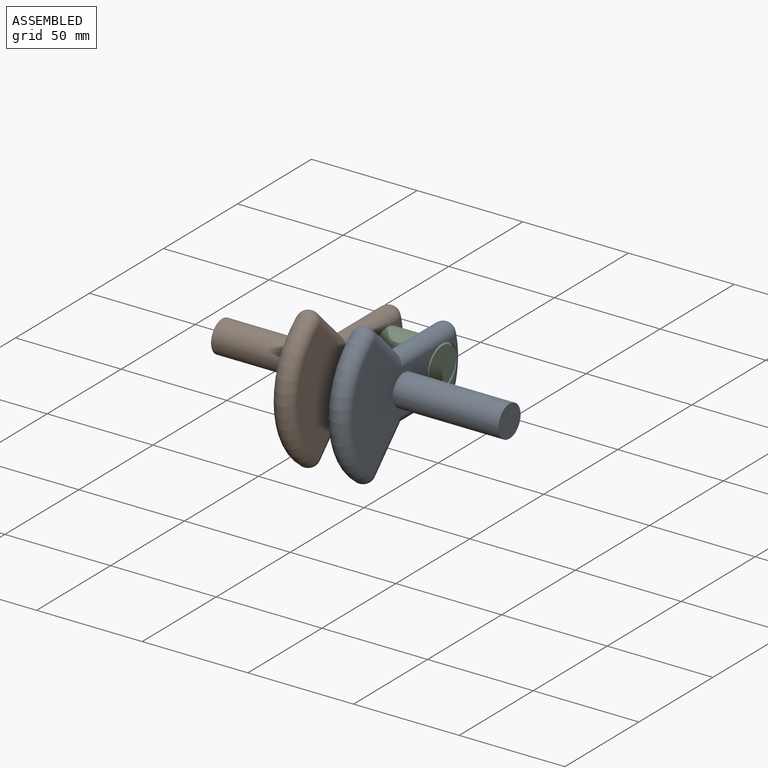
[diagram: assembled view]
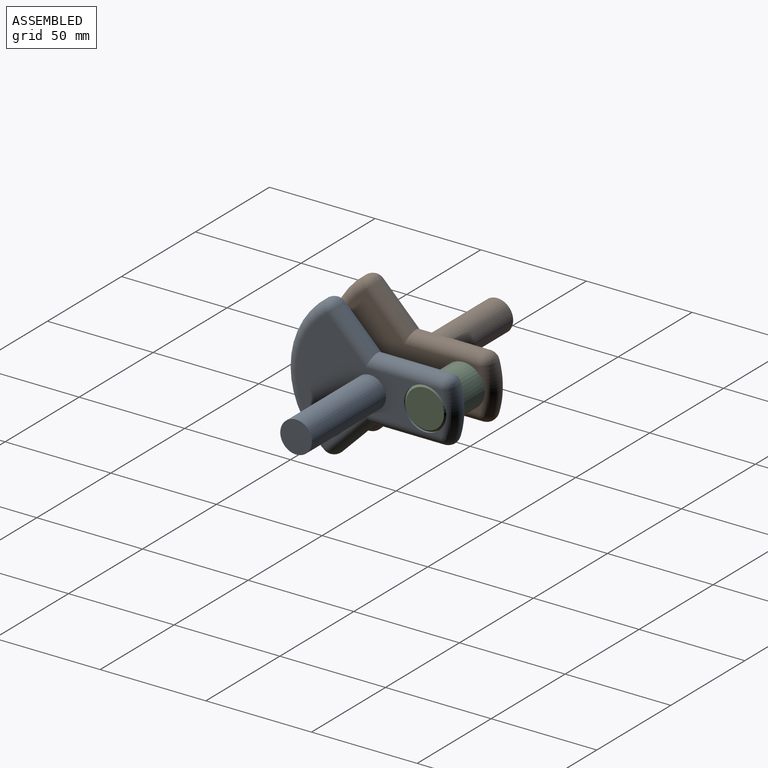
[diagram: assembled view, second angle]
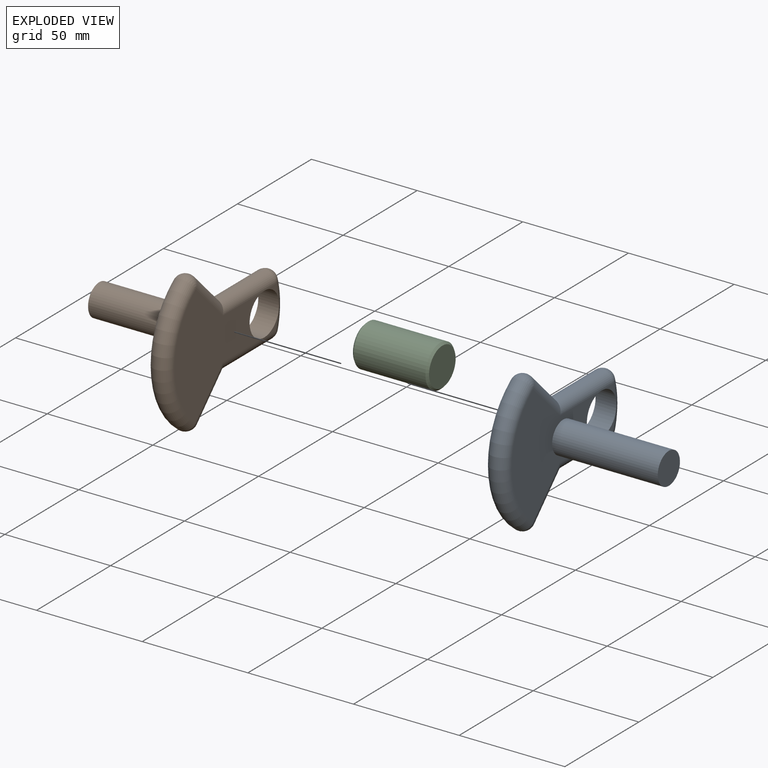
[diagram: exploded view]
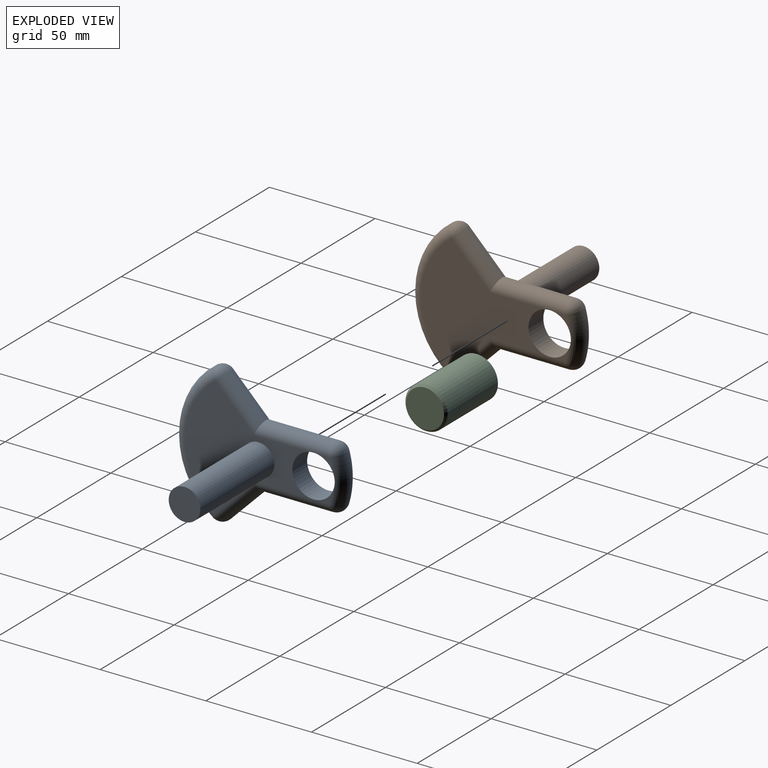
[diagram: exploded view, second angle]
ASSEMBLY  parts=3 mates=2
PART A: 19 faces, bbox 60x86.6x70.2 mm
  f0: plane 8.63x4.96mm, normal (1,0,0), area 10.1mm2, adj f4,f15,f18
  f1: plane 8.63x4.96mm, normal (1,0,0), area 10.1mm2, adj f4,f11,f15
  f2: plane 8.63x4.96mm, normal (-1,0,0), area 10.1mm2, adj f4,f11,f15
  f3: plane 8.63x4.96mm, normal (-1,0,0), area 10.1mm2, adj f4,f15,f18
  f4: cylinder r=10mm len=20mm, axis (-1,0,0), area 627.2mm2, adj f0,f1,f2,f3,f5,f6,f15
  f5: plane 61x56.79mm, normal (1,0,0), area 1512mm2, adj f4,f7,f9,f11,f12,f16,f18
  f6: plane 61x56.79mm, normal (-1,0,0), area 1688.7mm2, adj f4,f9,f11,f12,f16,f18
  f7: cylinder r=7.5mm len=50mm, axis (-1,0,0), area 2356.2mm2, adj f5,f8
  f8: plane 15x15mm, normal (1,0,0), area 176.7mm2, adj f7
  f9: cylinder r=5mm len=21.93mm, axis (0,0.71,-0.71), area 387.9mm2, adj f5,f6,f10,f11
  f10: sphere r=5mm, area 70.5mm2, adj f9,f12
  f11: cylinder r=5mm len=35.61mm, axis (0,1,0), area 538.7mm2, adj f1,f2,f5,f6,f9,f13
  f12: torus R=35mm, axis (1,0,0), area 1135.1mm2, adj f5,f6,f10,f14
  f13: sphere r=5mm, area 64.1mm2, adj f11,f15
  f14: sphere r=5mm, area 70.5mm2, adj f12,f16
  f15: torus R=35mm, axis (1,0,0), area 333.8mm2, adj f0,f1,f2,f3,f4,f13,f17
  f16: cylinder r=5mm len=21.93mm, axis (0,-0.71,-0.71), area 387.9mm2, adj f5,f6,f14,f18
  f17: sphere r=5mm, area 64.1mm2, adj f15,f18
  f18: cylinder r=5mm len=35.61mm, axis (0,-1,0), area 538.7mm2, adj f0,f3,f5,f6,f16,f17
PART B: same geometry as A
PART C: 5 faces, bbox 36x20x20 mm
  f0: cylinder r=10mm len=34mm, axis (-1,0,0), area 2136.3mm2, adj f3,f4
  f1: plane 18x18mm, normal (1,0,0), area 254.5mm2, adj f4
  f2: plane 18x18mm, normal (-1,0,0), area 254.5mm2, adj f3
  f3: cone r=10mm half-angle=45deg, axis (1,0,0), area 84.4mm2, adj f0,f2
  f4: cone r=9mm half-angle=45deg, axis (-1,0,0), area 84.4mm2, adj f0,f1
PLACE A t=(-15.11,-65.87,6.48)mm fixed
PLACE B rot(axis=(0,1,0),180deg) t=(-31.11,-65.87,6.48)mm
PLACE C t=(-41.11,-39.87,6.48)mm
MATE fastened C.f0 <-> B.f4  axis (-1,0,0) through (-41.11,-39.87,6.48)mm
MATE fastened C.f0 <-> A.f4  axis (1,0,0) through (-5.11,-39.87,6.48)mm
